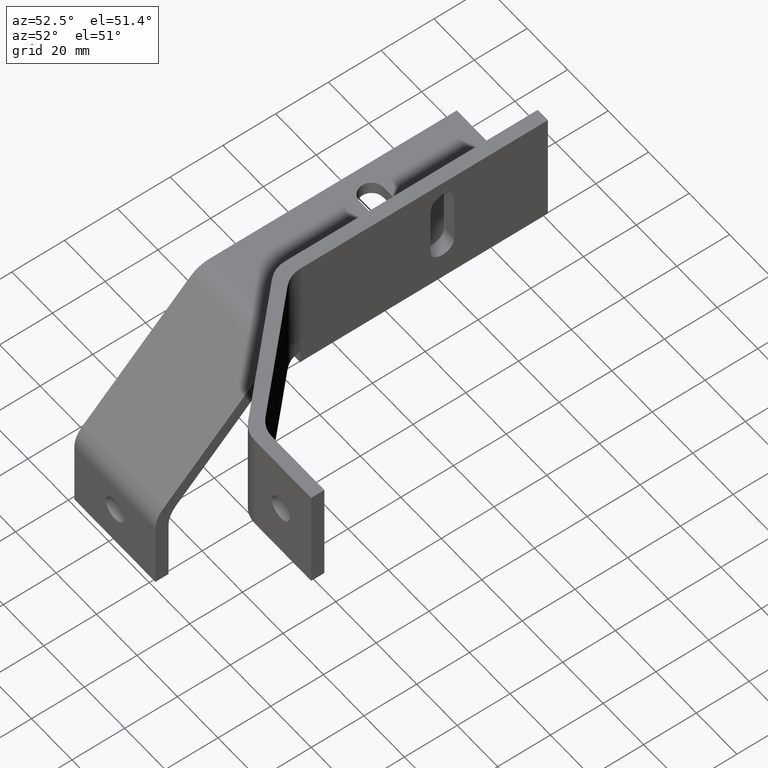
[diagram: clean part render]
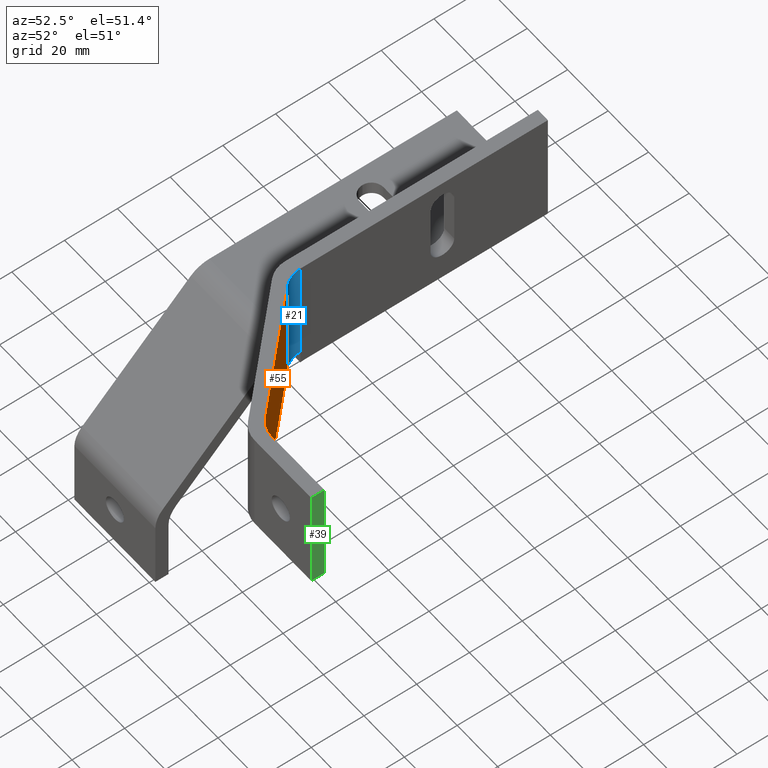
[diagram: same view with three faces highlighted in distinct colors, each labeled with its STEP entity id]
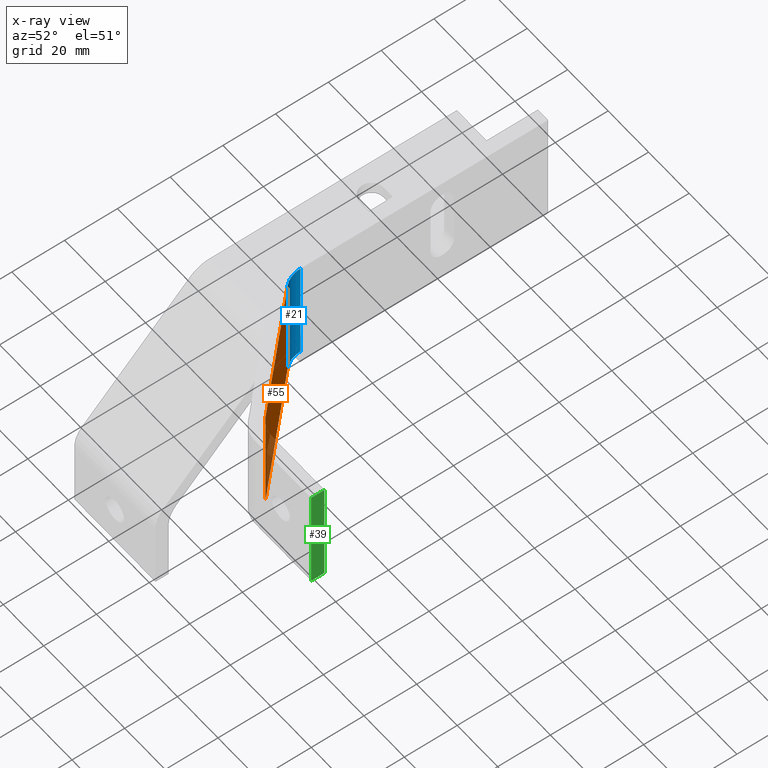
[diagram: x-ray of the same camera — body ghosted, the three highlighted faces saturated]
A machine part, auxiliary view with three faces highlighted in distinct colors.
The next image is the same camera in x-ray (body ghosted, the three faces saturated) — at least one of them is partly hidden behind the body in this view.
Their STEP definitions:

[orange] entity #55 — the highlighted planar face has unit normal (-0.7071, -0.7071, 0).
#55 = ADVANCED_FACE ( 'NONE', ( #597 ), #1404, .F. ) ;
#131 = CARTESIAN_POINT ( 'NONE',  ( -32.92893218777526700, 7.928932188044305100, 19.99999999999999600 ) ) ;
#132 = DIRECTION ( 'NONE',  ( 0.0000000000000000000, 0.0000000000000000000, 1.000000000000000000 ) ) ;
#133 = CARTESIAN_POINT ( 'NONE',  ( -69.07106781177525100, 44.07106781204431200, 19.99999999999999600 ) ) ;
#134 = DIRECTION ( 'NONE',  ( -0.0000000000000000000, -0.0000000000000000000, -1.000000000000000000 ) ) ;
#208 = CARTESIAN_POINT ( 'NONE',  ( -69.07106781188763000, 44.07106781202216400, 40.00000000000000000 ) ) ;
#212 = CARTESIAN_POINT ( 'NONE',  ( -69.07106781628657200, 44.07106780676394900, 0.0000000000000000000 ) ) ;
#213 = CARTESIAN_POINT ( 'NONE',  ( -32.92893218788764600, 7.928932188022149500, 40.00000000000000000 ) ) ;
#214 = CARTESIAN_POINT ( 'NONE',  ( -32.92893219009057800, 7.928932184959935900, 0.0000000000000000000 ) ) ;
#235 = CARTESIAN_POINT ( 'NONE',  ( -69.07106783500000800, 44.07106781568571600, 0.0000000000000000000 ) ) ;
#236 = DIRECTION ( 'NONE',  ( 0.7071067812724751700, -0.7071067811006199700, 0.0000000000000000000 ) ) ;
#266 = EDGE_CURVE ( 'NONE', #1303, #1308, #442, .T. ) ;
#389 = VECTOR ( 'NONE', #134, 1000.000000000000000 ) ;
#390 = LINE ( 'NONE', #133, #389 ) ;
#391 = VECTOR ( 'NONE', #132, 1000.000000000000000 ) ;
#393 = LINE ( 'NONE', #131, #391 ) ;
#407 = VECTOR ( 'NONE', #236, 1000.000000000000000 ) ;
#409 = LINE ( 'NONE', #235, #407 ) ;
#441 = VECTOR ( 'NONE', #1067, 999.9999999999998900 ) ;
#442 = LINE ( 'NONE', #1066, #441 ) ;
#597 = FACE_OUTER_BOUND ( 'NONE', #1015, .T. ) ;
#618 = ORIENTED_EDGE ( 'NONE', *, *, #1354, .F. ) ;
#619 = ORIENTED_EDGE ( 'NONE', *, *, #1365, .F. ) ;
#645 = ORIENTED_EDGE ( 'NONE', *, *, #1364, .F. ) ;
#745 = AXIS2_PLACEMENT_3D ( 'NONE', #1405, #1406, #1407 ) ;
#969 = ORIENTED_EDGE ( 'NONE', *, *, #266, .T. ) ;
#1015 = EDGE_LOOP ( 'NONE', ( #645, #618, #619, #969 ) ) ;
#1066 = CARTESIAN_POINT ( 'NONE',  ( -69.07106781199998100, 44.07106781199999500, 40.00000000000000000 ) ) ;
#1067 = DIRECTION ( 'NONE',  ( 0.7071067811865472400, -0.7071067811865479100, 0.0000000000000000000 ) ) ;
#1303 = VERTEX_POINT ( 'NONE', #208 ) ;
#1307 = VERTEX_POINT ( 'NONE', #212 ) ;
#1308 = VERTEX_POINT ( 'NONE', #213 ) ;
#1309 = VERTEX_POINT ( 'NONE', #214 ) ;
#1354 = EDGE_CURVE ( 'NONE', #1307, #1309, #409, .T. ) ;
#1364 = EDGE_CURVE ( 'NONE', #1309, #1308, #393, .T. ) ;
#1365 = EDGE_CURVE ( 'NONE', #1303, #1307, #390, .T. ) ;
#1404 = PLANE ( 'NONE',  #745 ) ;
#1405 = CARTESIAN_POINT ( 'NONE',  ( -69.07106781199998100, 44.07106781199999500, 0.0000000000000000000 ) ) ;
#1406 = DIRECTION ( 'NONE',  ( -0.7071067811865479100, -0.7071067811865472400, 0.0000000000000000000 ) ) ;
#1407 = DIRECTION ( 'NONE',  ( 0.7071067811865472400, -0.7071067811865479100, 0.0000000000000000000 ) ) ;

[blue] entity #21 — the highlighted cylindrical surface (edge-blend (fillet) strip) has radius 10 mm, axis along (0, -0, 1).
#21 = ADVANCED_FACE ( 'NONE', ( #676 ), #675, .F. ) ;
#101 = EDGE_CURVE ( 'NONE', #789, #1303, #504, .T. ) ;
#102 = EDGE_CURVE ( 'NONE', #787, #789, #505, .T. ) ;
#103 = EDGE_CURVE ( 'NONE', #787, #1307, #501, .T. ) ;
#133 = CARTESIAN_POINT ( 'NONE',  ( -69.07106781177525100, 44.07106781204431200, 19.99999999999999600 ) ) ;
#134 = DIRECTION ( 'NONE',  ( -0.0000000000000000000, -0.0000000000000000000, -1.000000000000000000 ) ) ;
#177 = CARTESIAN_POINT ( 'NONE',  ( -72.00000000000001400, 51.14213562400001900, -1.084202172485504400E-016 ) ) ;
#179 = CARTESIAN_POINT ( 'NONE',  ( -72.00000000000001400, 51.14213562400001900, 40.00000000000000000 ) ) ;
#208 = CARTESIAN_POINT ( 'NONE',  ( -69.07106781188763000, 44.07106781202216400, 40.00000000000000000 ) ) ;
#212 = CARTESIAN_POINT ( 'NONE',  ( -69.07106781628657200, 44.07106780676394900, 0.0000000000000000000 ) ) ;
#338 = CARTESIAN_POINT ( 'NONE',  ( -62.00000000000000000, 51.14213562400001900, 0.0000000000000000000 ) ) ;
#339 = DIRECTION ( 'NONE',  ( 0.0000000000000000000, -0.0000000000000000000, 1.000000000000000000 ) ) ;
#340 = DIRECTION ( 'NONE',  ( 1.000000000000000000, 0.0000000000000000000, 0.0000000000000000000 ) ) ;
#389 = VECTOR ( 'NONE', #134, 1000.000000000000000 ) ;
#390 = LINE ( 'NONE', #133, #389 ) ;
#501 = CIRCLE ( 'NONE', #730, 9.999999999999994700 ) ;
#503 = VECTOR ( 'NONE', #822, 1000.000000000000000 ) ;
#504 = CIRCLE ( 'NONE', #731, 9.999999999999994700 ) ;
#505 = LINE ( 'NONE', #821, #503 ) ;
#675 = CYLINDRICAL_SURFACE ( 'NONE', #1342, 9.999999999999994700 ) ;
#676 = FACE_OUTER_BOUND ( 'NONE', #1013, .T. ) ;
#730 = AXIS2_PLACEMENT_3D ( 'NONE', #823, #824, #825 ) ;
#731 = AXIS2_PLACEMENT_3D ( 'NONE', #818, #819, #820 ) ;
#787 = VERTEX_POINT ( 'NONE', #177 ) ;
#789 = VERTEX_POINT ( 'NONE', #179 ) ;
#818 = CARTESIAN_POINT ( 'NONE',  ( -62.00000000000000000, 51.14213562400001900, 40.00000000000000000 ) ) ;
#819 = DIRECTION ( 'NONE',  ( 0.0000000000000000000, -0.0000000000000000000, 1.000000000000000000 ) ) ;
#820 = DIRECTION ( 'NONE',  ( 1.000000000000000000, 0.0000000000000000000, 0.0000000000000000000 ) ) ;
#821 = CARTESIAN_POINT ( 'NONE',  ( -72.00000000000001400, 51.14213562400001900, 17.25594126750000300 ) ) ;
#822 = DIRECTION ( 'NONE',  ( 0.0000000000000000000, 0.0000000000000000000, 1.000000000000000000 ) ) ;
#823 = CARTESIAN_POINT ( 'NONE',  ( -62.00000000000000000, 51.14213562400001900, 0.0000000000000000000 ) ) ;
#824 = DIRECTION ( 'NONE',  ( 0.0000000000000000000, -0.0000000000000000000, 1.000000000000000000 ) ) ;
#825 = DIRECTION ( 'NONE',  ( 1.000000000000000000, 0.0000000000000000000, 0.0000000000000000000 ) ) ;
#989 = ORIENTED_EDGE ( 'NONE', *, *, #101, .T. ) ;
#990 = ORIENTED_EDGE ( 'NONE', *, *, #1365, .T. ) ;
#991 = ORIENTED_EDGE ( 'NONE', *, *, #103, .F. ) ;
#992 = ORIENTED_EDGE ( 'NONE', *, *, #102, .T. ) ;
#1013 = EDGE_LOOP ( 'NONE', ( #991, #992, #989, #990 ) ) ;
#1303 = VERTEX_POINT ( 'NONE', #208 ) ;
#1307 = VERTEX_POINT ( 'NONE', #212 ) ;
#1342 = AXIS2_PLACEMENT_3D ( 'NONE', #338, #339, #340 ) ;
#1365 = EDGE_CURVE ( 'NONE', #1303, #1307, #390, .T. ) ;

[green] entity #39 — the highlighted planar face has unit normal (-1, 0, 0).
#39 = ADVANCED_FACE ( 'NONE', ( #634 ), #1212, .F. ) ;
#205 = CARTESIAN_POINT ( 'NONE',  ( 0.0000000000000000000, 2.312964634635742700E-015, -1.156482317317871300E-015 ) ) ;
#207 = CARTESIAN_POINT ( 'NONE',  ( 0.0000000000000000000, 0.0000000000000000000, 40.00000000000000000 ) ) ;
#209 = CARTESIAN_POINT ( 'NONE',  ( 0.0000000000000000000, 5.000000036666664400, 40.00000000000000700 ) ) ;
#217 = CARTESIAN_POINT ( 'NONE',  ( 1.156482317317871300E-015, 4.999999985920418900, 0.0000000000000000000 ) ) ;
#242 = EDGE_CURVE ( 'NONE', #1304, #1302, #483, .T. ) ;
#243 = EDGE_CURVE ( 'NONE', #1304, #1312, #481, .T. ) ;
#265 = EDGE_CURVE ( 'NONE', #1312, #1300, #444, .T. ) ;
#271 = EDGE_CURVE ( 'NONE', #1302, #1300, #435, .T. ) ;
#433 = VECTOR ( 'NONE', #1079, 1000.000000000000000 ) ;
#435 = LINE ( 'NONE', #1078, #433 ) ;
#443 = VECTOR ( 'NONE', #1065, 1000.000000000000000 ) ;
#444 = LINE ( 'NONE', #1064, #443 ) ;
#480 = VECTOR ( 'NONE', #1049, 1000.000000000000000 ) ;
#481 = LINE ( 'NONE', #1048, #480 ) ;
#482 = VECTOR ( 'NONE', #1047, 1000.000000000000000 ) ;
#483 = LINE ( 'NONE', #1046, #482 ) ;
#634 = FACE_OUTER_BOUND ( 'NONE', #1020, .T. ) ;
#760 = AXIS2_PLACEMENT_3D ( 'NONE', #1213, #1214, #1215 ) ;
#964 = ORIENTED_EDGE ( 'NONE', *, *, #243, .F. ) ;
#975 = ORIENTED_EDGE ( 'NONE', *, *, #271, .T. ) ;
#976 = ORIENTED_EDGE ( 'NONE', *, *, #265, .F. ) ;
#981 = ORIENTED_EDGE ( 'NONE', *, *, #242, .T. ) ;
#1020 = EDGE_LOOP ( 'NONE', ( #964, #981, #975, #976 ) ) ;
#1046 = CARTESIAN_POINT ( 'NONE',  ( 0.0000000000000000000, 72.50000000000000000, 40.00000000000000000 ) ) ;
#1047 = DIRECTION ( 'NONE',  ( -0.0000000000000000000, -1.000000000000000000, -0.0000000000000000000 ) ) ;
#1048 = CARTESIAN_POINT ( 'NONE',  ( 0.0000000000000000000, 5.000000000000000000, 20.00000000000000000 ) ) ;
#1049 = DIRECTION ( 'NONE',  ( -0.0000000000000000000, -0.0000000000000000000, -1.000000000000000000 ) ) ;
#1064 = CARTESIAN_POINT ( 'NONE',  ( 0.0000000000000000000, 25.57106781200001000, 0.0000000000000000000 ) ) ;
#1065 = DIRECTION ( 'NONE',  ( -0.0000000000000000000, -1.000000000000000000, -0.0000000000000000000 ) ) ;
#1078 = CARTESIAN_POINT ( 'NONE',  ( 0.0000000000000000000, 0.0000000000000000000, 20.00000000000000000 ) ) ;
#1079 = DIRECTION ( 'NONE',  ( -0.0000000000000000000, -0.0000000000000000000, -1.000000000000000000 ) ) ;
#1212 = PLANE ( 'NONE',  #760 ) ;
#1213 = CARTESIAN_POINT ( 'NONE',  ( 0.0000000000000000000, 0.0000000000000000000, 0.0000000000000000000 ) ) ;
#1214 = DIRECTION ( 'NONE',  ( -1.000000000000000000, 0.0000000000000000000, 0.0000000000000000000 ) ) ;
#1215 = DIRECTION ( 'NONE',  ( 0.0000000000000000000, 0.0000000000000000000, 1.000000000000000000 ) ) ;
#1300 = VERTEX_POINT ( 'NONE', #205 ) ;
#1302 = VERTEX_POINT ( 'NONE', #207 ) ;
#1304 = VERTEX_POINT ( 'NONE', #209 ) ;
#1312 = VERTEX_POINT ( 'NONE', #217 ) ;